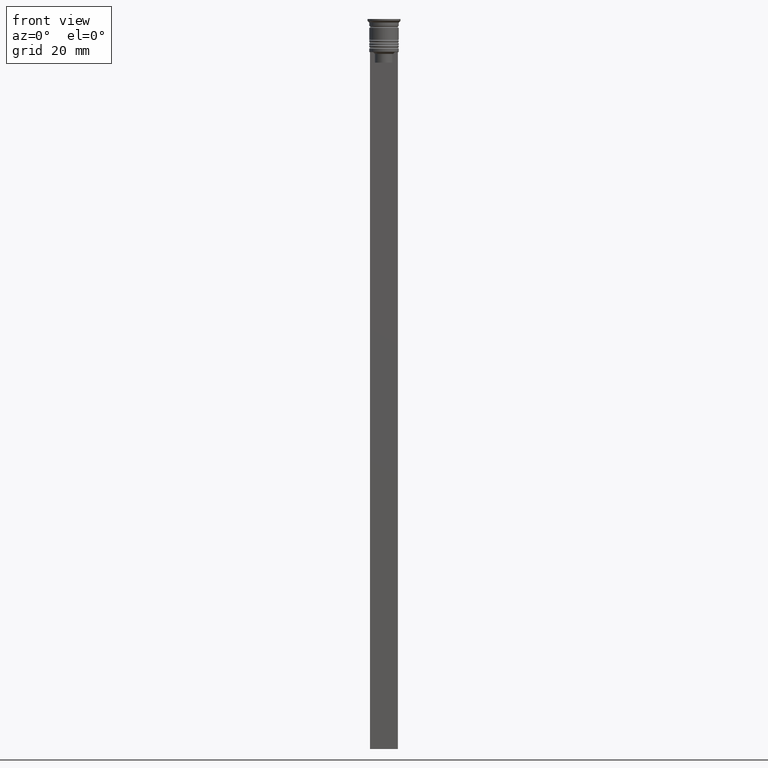
[diagram: clean part render]
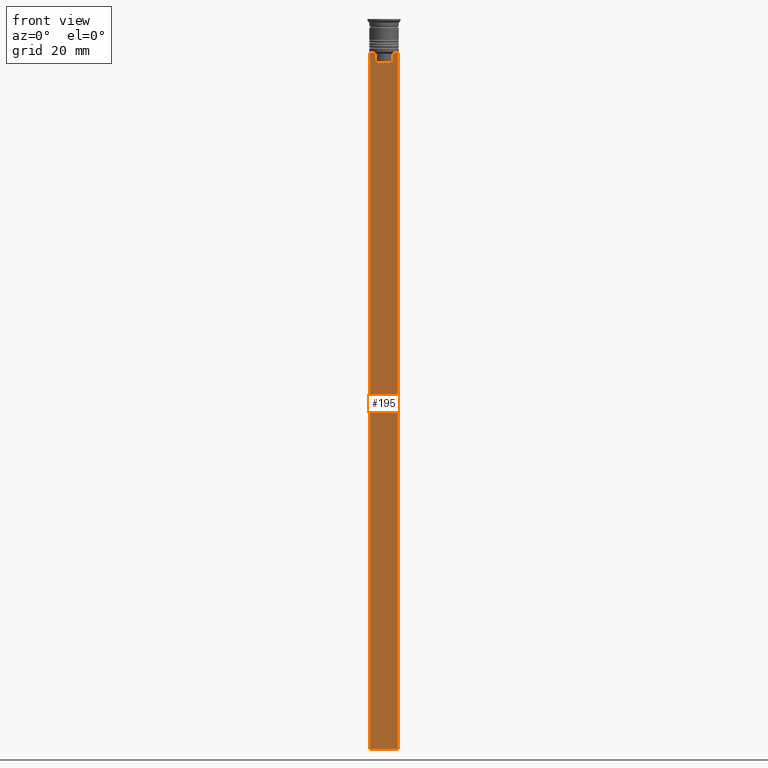
[diagram: same view with one face highlighted and labeled with its STEP entity id]
A machine part, front view. The second image highlights one B-rep face of the part: STEP entity #195.
In plain terms, the highlighted planar face has unit normal (0, -1, -0).
Its self-contained STEP definition (entity closure, byte-faithful):
#9 = AXIS2_PLACEMENT_3D ( 'NONE', #1165, #1926, #1000 ) ;
#100 = CARTESIAN_POINT ( 'NONE',  ( 2.602402735934616906, -0.5000000000000004441, -10.00000000000000178 ) ) ;
#116 = VERTEX_POINT ( 'NONE', #1866 ) ;
#119 = CARTESIAN_POINT ( 'NONE',  ( 2.602402735934616906, -0.5000000000000004441, -12.50000000000000000 ) ) ;
#122 = VERTEX_POINT ( 'NONE', #1443 ) ;
#131 = VECTOR ( 'NONE', #1759, 1000.000000000000000 ) ;
#148 = VERTEX_POINT ( 'NONE', #1093 ) ;
#195 = ADVANCED_FACE ( 'NONE', ( #1531 ), #2060, .T. ) ;
#264 = B_SPLINE_CURVE_WITH_KNOTS ( 'NONE', 3,
 ( #2019, #1680, #539, #962 ),
 .UNSPECIFIED., .F., .F.,
 ( 4, 4 ),
 ( 0.01295151922336847811, 0.01367164596165162602 ),
 .UNSPECIFIED. ) ;
#265 = CARTESIAN_POINT ( 'NONE',  ( -2.771866350855961336, -0.5000000000000004441, -9.833580160334840059 ) ) ;
#311 = LINE ( 'NONE', #857, #2216 ) ;
#323 = DIRECTION ( 'NONE',  ( 0.000000000000000000, 0.000000000000000000, -1.000000000000000000 ) ) ;
#417 = LINE ( 'NONE', #1006, #557 ) ;
#446 = CARTESIAN_POINT ( 'NONE',  ( 4.000000000000005329, -0.5000000000000004441, -1.437742251701450202 ) ) ;
#495 = ORIENTED_EDGE ( 'NONE', *, *, #521, .F. ) ;
#501 = CARTESIAN_POINT ( 'NONE',  ( -2.602402735934616906, -0.5000000000000004441, 0.000000000000000000 ) ) ;
#521 = EDGE_CURVE ( 'NONE', #2233, #2375, #2321, .T. ) ;
#529 = VERTEX_POINT ( 'NONE', #100 ) ;
#539 = CARTESIAN_POINT ( 'NONE',  ( 2.941045828809988549, -0.5000000000000004441, -9.666875663357577864 ) ) ;
#557 = VECTOR ( 'NONE', #1933, 1000.000000000000000 ) ;
#566 = CARTESIAN_POINT ( 'NONE',  ( 4.000000000000005329, -0.5000000000000004441, -9.500000000000000000 ) ) ;
#577 = CARTESIAN_POINT ( 'NONE',  ( 0.000000000000000000, -0.5000000000000004441, -12.50000000000000000 ) ) ;
#603 = CARTESIAN_POINT ( 'NONE',  ( 4.000000000000005329, -0.5000000000000004441, -9.500000000000000000 ) ) ;
#605 = LINE ( 'NONE', #446, #1367 ) ;
#685 = EDGE_CURVE ( 'NONE', #529, #2233, #264, .T. ) ;
#717 = ORIENTED_EDGE ( 'NONE', *, *, #1211, .F. ) ;
#740 = DIRECTION ( 'NONE',  ( -1.000000000000000000, 0.000000000000000000, 0.000000000000000000 ) ) ;
#753 = VERTEX_POINT ( 'NONE', #1656 ) ;
#776 = ORIENTED_EDGE ( 'NONE', *, *, #2011, .F. ) ;
#821 = DIRECTION ( 'NONE',  ( 0.000000000000000000, 0.000000000000000000, -1.000000000000000000 ) ) ;
#857 = CARTESIAN_POINT ( 'NONE',  ( 4.000000000000005329, -0.5000000000000004441, -9.500000000000000000 ) ) ;
#874 = VECTOR ( 'NONE', #740, 1000.000000000000000 ) ;
#901 = LINE ( 'NONE', #2371, #874 ) ;
#962 = CARTESIAN_POINT ( 'NONE',  ( 3.110064308016796453, -0.5000000000000004441, -9.500000000000000000 ) ) ;
#1000 = DIRECTION ( 'NONE',  ( 0.000000000000000000, 0.000000000000000000, -1.000000000000000000 ) ) ;
#1006 = CARTESIAN_POINT ( 'NONE',  ( -3.999999999999994671, -0.5000000000000004441, -1.437742251701450202 ) ) ;
#1093 = CARTESIAN_POINT ( 'NONE',  ( -2.602402735934616906, -0.5000000000000004441, -10.00000000000000178 ) ) ;
#1139 = ORIENTED_EDGE ( 'NONE', *, *, #1476, .F. ) ;
#1165 = CARTESIAN_POINT ( 'NONE',  ( 4.000000000000005329, -0.5000000000000004441, -1.437742251701450202 ) ) ;
#1166 = CARTESIAN_POINT ( 'NONE',  ( -2.602402735934616906, -0.5000000000000004441, -10.00000000000000178 ) ) ;
#1177 = ORIENTED_EDGE ( 'NONE', *, *, #2361, .F. ) ;
#1181 = CARTESIAN_POINT ( 'NONE',  ( -2.941047749529104749, -0.5000000000000004441, -9.666873766989334982 ) ) ;
#1191 = CARTESIAN_POINT ( 'NONE',  ( -3.110064308016796453, -0.5000000000000004441, -9.500000000000000000 ) ) ;
#1199 = VERTEX_POINT ( 'NONE', #1191 ) ;
#1211 = EDGE_CURVE ( 'NONE', #2375, #2104, #605, .T. ) ;
#1218 = VECTOR ( 'NONE', #1838, 1000.000000000000000 ) ;
#1233 = ORIENTED_EDGE ( 'NONE', *, *, #1389, .F. ) ;
#1367 = VECTOR ( 'NONE', #821, 1000.000000000000000 ) ;
#1379 = CARTESIAN_POINT ( 'NONE',  ( 4.000000000000005329, -0.5000000000000004441, -209.5000000000000284 ) ) ;
#1389 = EDGE_CURVE ( 'NONE', #2285, #529, #2134, .T. ) ;
#1408 = EDGE_CURVE ( 'NONE', #122, #1199, #311, .T. ) ;
#1421 = LINE ( 'NONE', #501, #2329 ) ;
#1443 = CARTESIAN_POINT ( 'NONE',  ( -3.999999999999994671, -0.5000000000000004441, -9.500000000000000000 ) ) ;
#1476 = EDGE_CURVE ( 'NONE', #148, #753, #1421, .T. ) ;
#1531 = FACE_OUTER_BOUND ( 'NONE', #2226, .T. ) ;
#1549 = CARTESIAN_POINT ( 'NONE',  ( -3.110064308016796453, -0.5000000000000004441, -9.500000000000000000 ) ) ;
#1625 = EDGE_CURVE ( 'NONE', #1199, #148, #2185, .T. ) ;
#1656 = CARTESIAN_POINT ( 'NONE',  ( -2.602402735934616906, -0.5000000000000004441, -12.50000000000000000 ) ) ;
#1678 = LINE ( 'NONE', #577, #1218 ) ;
#1680 = CARTESIAN_POINT ( 'NONE',  ( 2.771864055700302476, -0.5000000000000004441, -9.833582414266679450 ) ) ;
#1691 = ORIENTED_EDGE ( 'NONE', *, *, #685, .F. ) ;
#1697 = DIRECTION ( 'NONE',  ( 1.000000000000000000, 0.000000000000000000, 0.000000000000000000 ) ) ;
#1702 = ORIENTED_EDGE ( 'NONE', *, *, #1625, .F. ) ;
#1759 = DIRECTION ( 'NONE',  ( -0.000000000000000000, -0.000000000000000000, 1.000000000000000000 ) ) ;
#1773 = CARTESIAN_POINT ( 'NONE',  ( 3.110064308016796453, -0.5000000000000004441, -9.500000000000000000 ) ) ;
#1810 = DIRECTION ( 'NONE',  ( 1.000000000000000000, 0.000000000000000000, 0.000000000000000000 ) ) ;
#1838 = DIRECTION ( 'NONE',  ( 1.000000000000000000, 0.000000000000000000, 0.000000000000000000 ) ) ;
#1866 = CARTESIAN_POINT ( 'NONE',  ( -3.999999999999994671, -0.5000000000000004441, -209.5000000000000284 ) ) ;
#1926 = DIRECTION ( 'NONE',  ( 0.000000000000000000, -1.000000000000000000, -0.000000000000000000 ) ) ;
#1933 = DIRECTION ( 'NONE',  ( 0.000000000000000000, 0.000000000000000000, -1.000000000000000000 ) ) ;
#1992 = ORIENTED_EDGE ( 'NONE', *, *, #1408, .F. ) ;
#2011 = EDGE_CURVE ( 'NONE', #2104, #116, #901, .T. ) ;
#2019 = CARTESIAN_POINT ( 'NONE',  ( 2.602402735934616906, -0.5000000000000004441, -10.00000000000000178 ) ) ;
#2060 = PLANE ( 'NONE',  #9 ) ;
#2091 = EDGE_CURVE ( 'NONE', #122, #116, #417, .T. ) ;
#2104 = VERTEX_POINT ( 'NONE', #1379 ) ;
#2132 = VECTOR ( 'NONE', #1697, 1000.000000000000000 ) ;
#2134 = LINE ( 'NONE', #2169, #131 ) ;
#2169 = CARTESIAN_POINT ( 'NONE',  ( 2.602402735934616906, -0.5000000000000004441, 0.000000000000000000 ) ) ;
#2185 = B_SPLINE_CURVE_WITH_KNOTS ( 'NONE', 3,
 ( #1549, #1181, #265, #1166 ),
 .UNSPECIFIED., .F., .F.,
 ( 4, 4 ),
 ( 0.005378271293598281544, 0.006090816219556000749 ),
 .UNSPECIFIED. ) ;
#2209 = ORIENTED_EDGE ( 'NONE', *, *, #2091, .T. ) ;
#2216 = VECTOR ( 'NONE', #1810, 1000.000000000000000 ) ;
#2226 = EDGE_LOOP ( 'NONE', ( #1702, #1992, #2209, #776, #717, #495, #1691, #1233, #1177, #1139 ) ) ;
#2233 = VERTEX_POINT ( 'NONE', #1773 ) ;
#2285 = VERTEX_POINT ( 'NONE', #119 ) ;
#2321 = LINE ( 'NONE', #603, #2132 ) ;
#2329 = VECTOR ( 'NONE', #323, 1000.000000000000000 ) ;
#2361 = EDGE_CURVE ( 'NONE', #753, #2285, #1678, .T. ) ;
#2371 = CARTESIAN_POINT ( 'NONE',  ( 4.000000000000005329, -0.5000000000000004441, -209.5000000000000284 ) ) ;
#2375 = VERTEX_POINT ( 'NONE', #566 ) ;